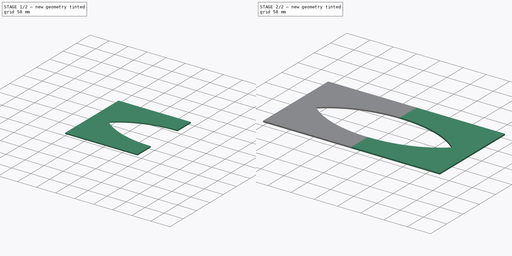
[diagram: build sequence overview — one tinted view per stage of 2, left to right]
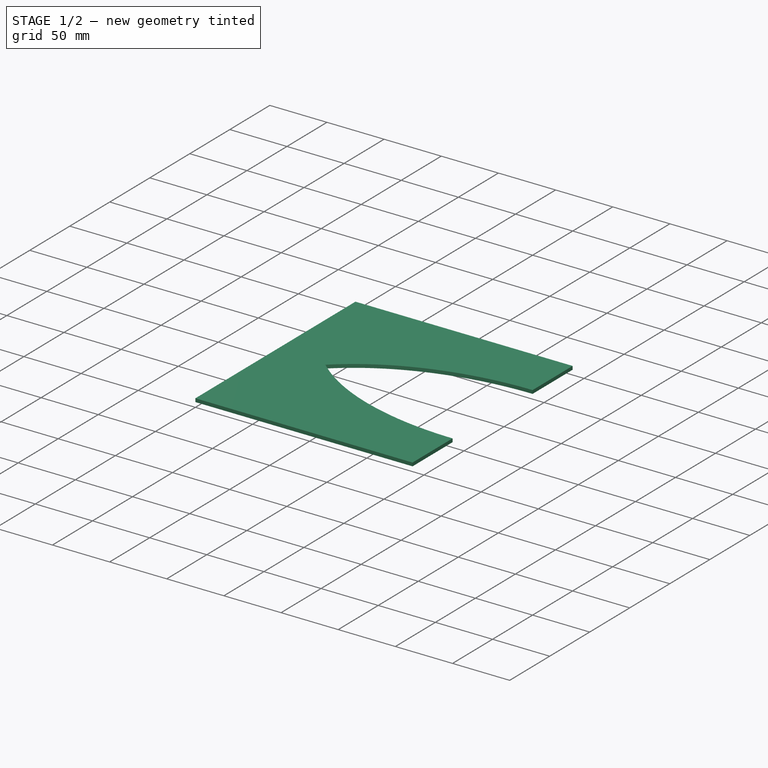
[diagram: stage 1 of 2 — iso view after this stage's code; geometry added in this stage tinted green]
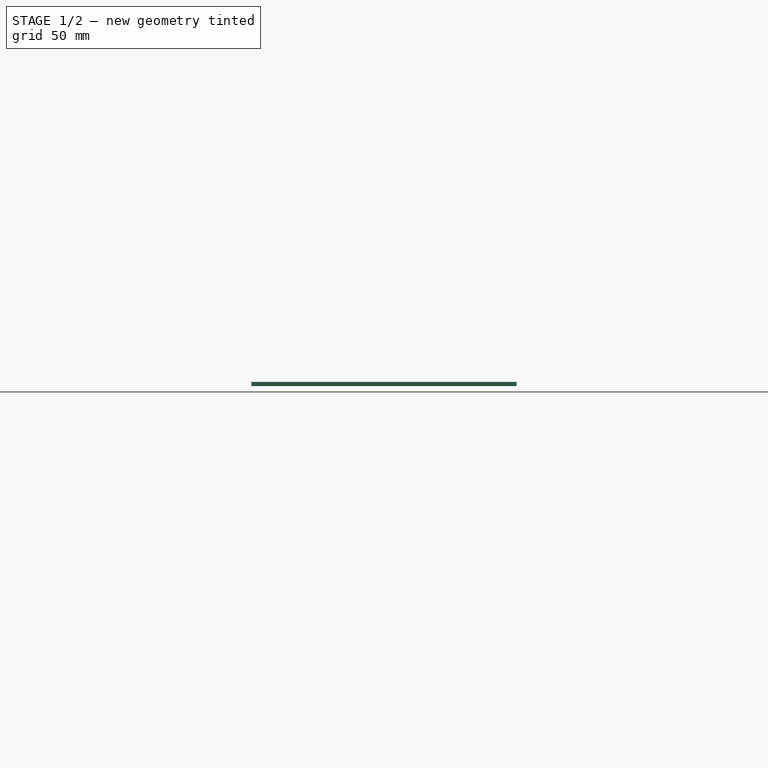
[diagram: stage 1 of 2 — front view after this stage's code; geometry added in this stage tinted green]
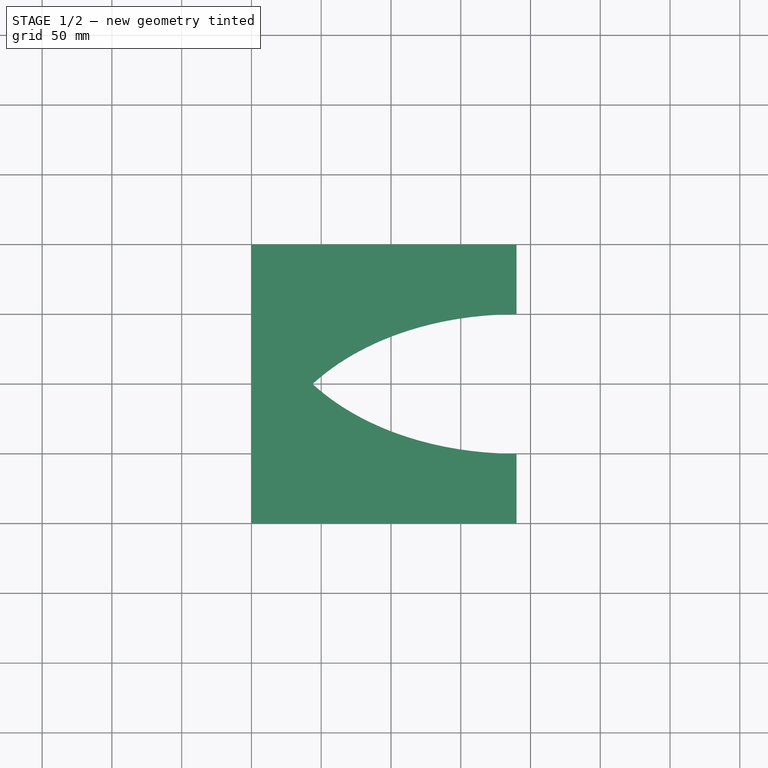
[diagram: stage 1 of 2 — top view after this stage's code; geometry added in this stage tinted green]
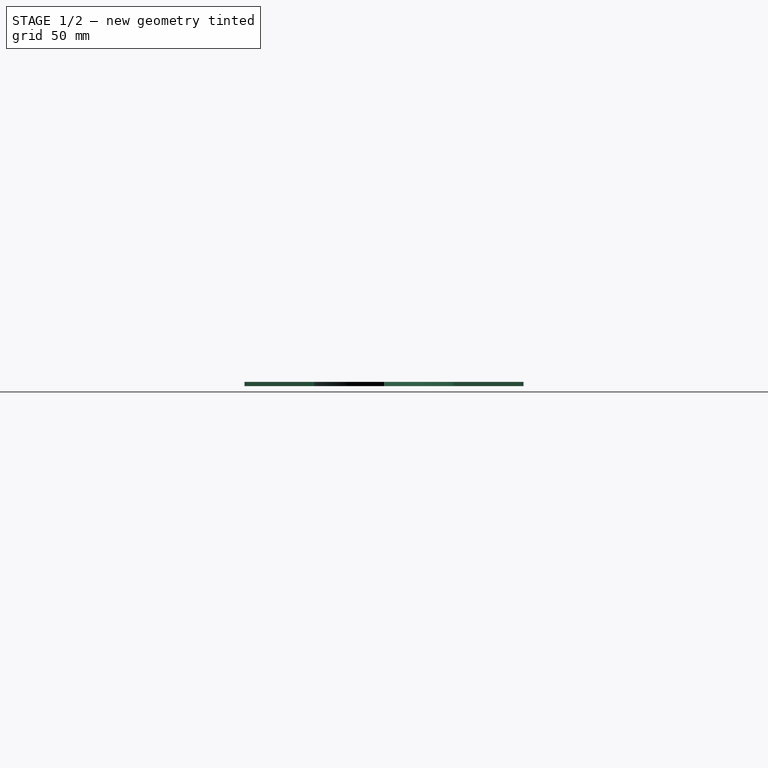
[diagram: stage 1 of 2 — right view after this stage's code; geometry added in this stage tinted green]
FCSTD DOCUMENT  (FreeCAD 0.20R0.20)
Label: 018
License: All rights reserved
LicenseURL: http://en.wikipedia.org/wiki/All_rights_reserved
objects: Sketcher::SketchObject×4, Part::Extrusion×2
note: 6 computed .brp shape members not serialized (recipe doc carries the construction recipe); baked Part::Feature solids carry a one-line shape summary decoded from their .brp

FEATURE [Part::Extrusion] Extrude  label="baseTopL001"
  Base = -> Sketch003
  Dir = (0,0,1)
  DirMode = 2
  FaceMakerClass = Part::FaceMakerBullseye
  LengthFwd = 3
  LengthRev = 0
  Solid = true
  Symmetric = false
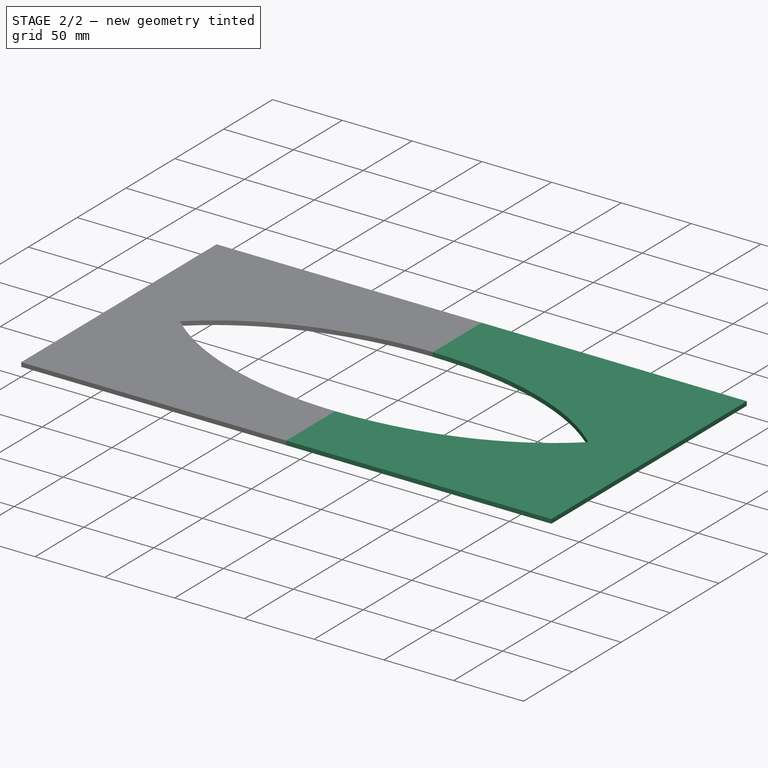
[diagram: stage 2 of 2 — iso view after this stage's code; geometry added in this stage tinted green]
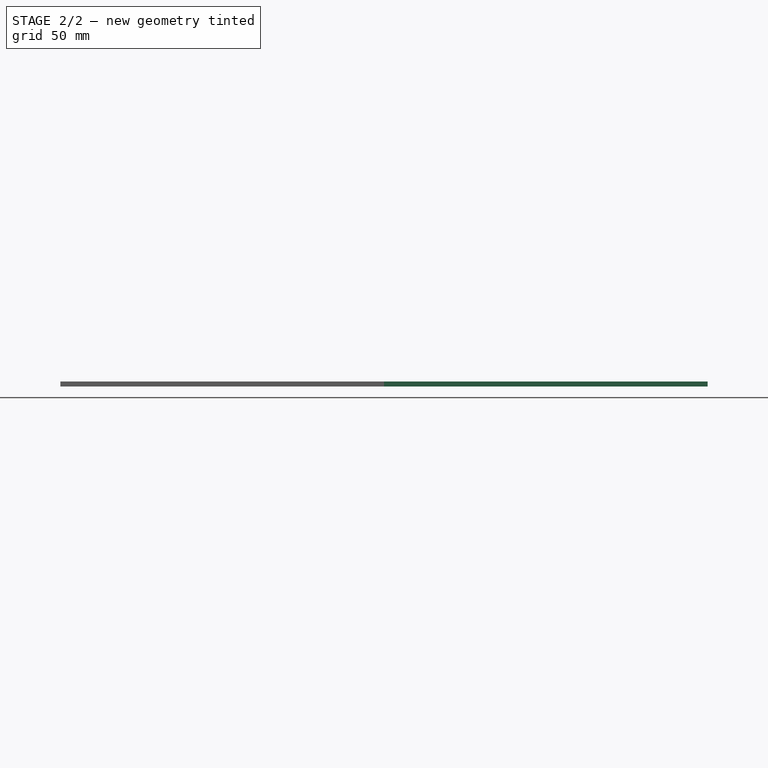
[diagram: stage 2 of 2 — front view after this stage's code; geometry added in this stage tinted green]
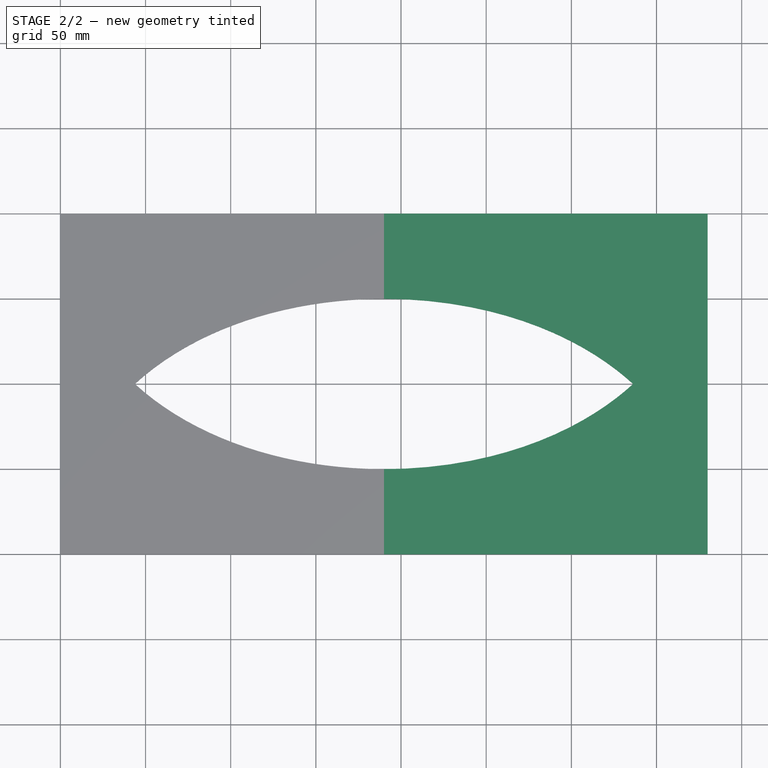
[diagram: stage 2 of 2 — top view after this stage's code; geometry added in this stage tinted green]
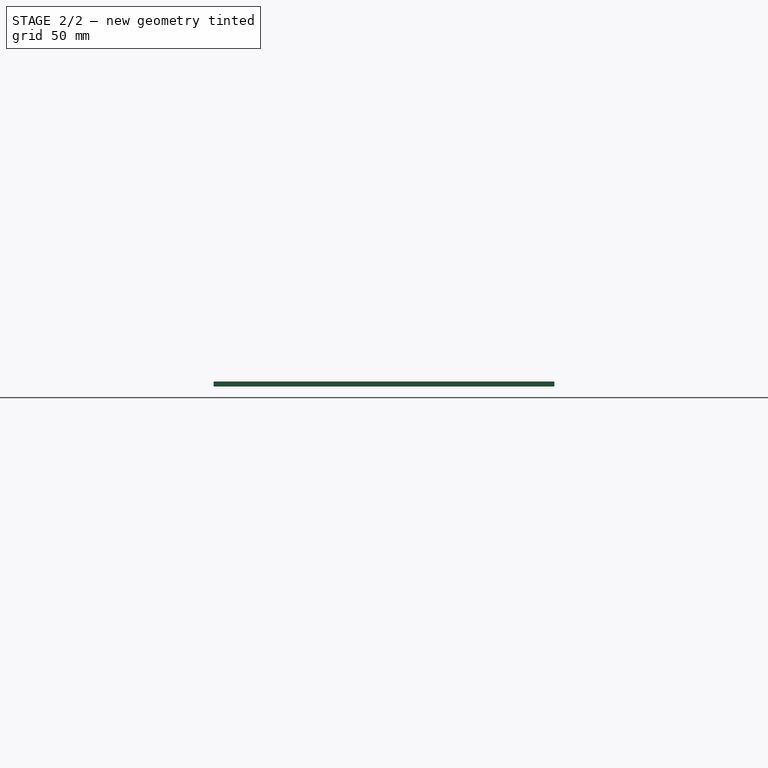
[diagram: stage 2 of 2 — right view after this stage's code; geometry added in this stage tinted green]
FEATURE [Sketcher::SketchObject] Sketch001  label="baseL"
  FullyConstrained = true
  sketch-geometry (26):
    g0: LineSegment StartX=0 StartY=0 StartZ=0 EndX=0 EndY=200 EndZ=0
    g1: LineSegment StartX=0 StartY=200 StartZ=0 EndX=190 EndY=200 EndZ=0
    g2: LineSegment StartX=0 StartY=0 StartZ=0 EndX=190 EndY=0 EndZ=0
    g3: LineSegment StartX=24 StartY=186 StartZ=0 EndX=172.826 EndY=114.213 EndZ=0
    g4: LineSegment StartX=16 StartY=178 StartZ=0 EndX=168.186 EndY=104.593 EndZ=0
    g5: LineSegment StartX=16 StartY=22 StartZ=0 EndX=168.186 EndY=95.4072 EndZ=0
    g6: LineSegment StartX=24 StartY=14 StartZ=0 EndX=172.826 EndY=85.7867 EndZ=0
    g7: LineSegment StartX=16 StartY=22 StartZ=0 EndX=16 EndY=178 EndZ=0
    g8: LineSegment StartX=200 StartY=94.0706 StartZ=0 EndX=209.626 EndY=89.4274 EndZ=0
    g9: LineSegment StartX=200 StartY=105.929 StartZ=0 EndX=209.626 EndY=110.573 EndZ=0
    g10: LineSegment StartX=24 StartY=14 StartZ=0 EndX=190 EndY=14 EndZ=0
    g11: LineSegment StartX=190 StartY=186 StartZ=0 EndX=24 EndY=186 EndZ=0
    g12: ArcOfCircle CenterX=190 CenterY=100 CenterZ=0 NormalX=0 NormalY=0 NormalZ=1 AngleXU=0 Radius=22.2927 StartAngle=0.494127 EndAngle=2.45024
    g13: ArcOfCircle CenterX=190 CenterY=100 CenterZ=0 NormalX=0 NormalY=0 NormalZ=1 AngleXU=0 Radius=11.6257 StartAngle=0.535213 EndAngle=5.74797
    g14: LineSegment StartX=190 StartY=200 StartZ=0 EndX=190 EndY=195.3 EndZ=0
    g15: LineSegment StartX=190 StartY=195.3 StartZ=0 EndX=186.638 EndY=195.3 EndZ=0
    g16: ArcOfCircle CenterX=184 CenterY=193 CenterZ=0 NormalX=0 NormalY=0 NormalZ=1 AngleXU=0 Radius=3.5 StartAngle=0.717022 EndAngle=5.56616
    g17: LineSegment StartX=190 StartY=186 StartZ=0 EndX=190 EndY=190.7 EndZ=0
    g18: LineSegment StartX=190 StartY=190.7 StartZ=0 EndX=186.638 EndY=190.7 EndZ=0
    g19: LineSegment StartX=190 StartY=14 StartZ=0 EndX=190 EndY=9 EndZ=0
    g20: LineSegment StartX=190 StartY=9 StartZ=0 EndX=193.652 EndY=9 EndZ=0
    g21: LineSegment StartX=190 StartY=0 StartZ=0 EndX=190 EndY=5 EndZ=0
    g22: ArcOfCircle CenterX=196.15 CenterY=7 CenterZ=0 NormalX=0 NormalY=0 NormalZ=1 AngleXU=0 Radius=3.2 StartAngle=3.81672 EndAngle=8.74965
    g23: LineSegment StartX=190 StartY=5 StartZ=0 EndX=193.652 EndY=5 EndZ=0
    g24: ArcOfCircle CenterX=190 CenterY=100 CenterZ=0 NormalX=0 NormalY=0 NormalZ=1 AngleXU=0 Radius=22.2927 StartAngle=3.83294 EndAngle=5.78906
    g25: ArcOfCircle CenterX=190 CenterY=100 CenterZ=0 NormalX=0 NormalY=0 NormalZ=1 AngleXU=0 Radius=22.2927 StartAngle=2.93408 EndAngle=3.3491
  constraints (67):
    c: Coincident(g0,g-1)
    c: Vertical(g0)
    c: Distance(g0) = 200
    c: Coincident(g1,g0)
    c: Horizontal(g1)
    c: Distance(g1) = 190
    c: Coincident(g2,g0)
    c: Horizontal(g2)
    c: Distance(g2) = 190
    c: Block(g3)
    c: Block(g4)
    c: Block(g6)
    c: Block(g5)
    c: Vertical(g7)
    c: Block(g7)
    c: Block(g9)
    c: Block(g8)
    c: Coincident(g10,g6)
    c: Horizontal(g10)
    c: Coincident(g11,g3)
    c: Horizontal(g11)
    c: Block(g11)
    c: Coincident(g14,g1)
    c: Vertical(g14)
    c: Distance(g14) = 4.7
    c: Coincident(g15,g14)
    c: Horizontal(g15)
    c: Coincident(g17,g11)
    c: Vertical(g17)
    c: Distance(g17) = 4.7
    c: Coincident(g18,g17)
    c: Block(g18)
    c: Block(g10)
    c: Coincident(g19,g10)
    c: Vertical(g19)
    c: Distance(g19) = 5
    c: Coincident(g20,g19)
    c: Horizontal(g20)
    c: Coincident(g21,g2)
    c: Vertical(g21)
    c: Distance(g21) = 5
    c: Coincident(g23,g21)
    c: Horizontal(g23)
    c: Block(g23)
    c: Block(g22)
    c: Coincident(g22,g20)
    c: Coincident(g22,g23)
    c: Block(g20)
    c: Block(g19)
    c: Block(g16)
    c: Coincident(g16,g18)
    c: Coincident(g16,g15)
    c: Block(g15)
    c: Coincident(g13,g8)
    c: Coincident(g13,g9)
    c: Block(g13)
    c: Block(g12)
    c: Coincident(g9,g12)
    c: Coincident(g8,g24)
    c: Equal(g12,g24)
    c: Coincident(g25,g5)
    c: Coincident(g24,g6)
    c: Coincident(g12,g24)
    c: Equal(g12,g25)
    c: Coincident(g12,g3)
    c: Coincident(g25,g4)
    c: Coincident(g12,g25)
FEATURE [Sketcher::SketchObject] Sketch002  label="baseR"
  FullyConstrained = true
  sketch-geometry (25):
    g0: LineSegment StartX=390 StartY=200 StartZ=0 EndX=390 EndY=0 EndZ=0
    g1: LineSegment StartX=390 StartY=200 StartZ=0 EndX=200 EndY=200 EndZ=0
    g2: LineSegment StartX=390 StartY=0 StartZ=0 EndX=200 EndY=0 EndZ=0
    g3: LineSegment StartX=212.293 StartY=100 StartZ=0 EndX=374 EndY=22 EndZ=0
    g4: LineSegment StartX=217.615 StartY=85.5738 StartZ=0 EndX=366 EndY=14 EndZ=0
    g5: LineSegment StartX=374 StartY=178 StartZ=0 EndX=212.293 EndY=100 EndZ=0
    g6: LineSegment StartX=217.615 StartY=114.426 StartZ=0 EndX=366 EndY=186 EndZ=0
    g7: LineSegment StartX=374 StartY=178 StartZ=0 EndX=374 EndY=22 EndZ=0
    g8: LineSegment StartX=366 StartY=14 StartZ=0 EndX=200 EndY=14 EndZ=0
    g9: LineSegment StartX=200 StartY=186 StartZ=0 EndX=366 EndY=186 EndZ=0
    g10: ArcOfCircle CenterX=200 CenterY=100 CenterZ=0 NormalX=0 NormalY=0 NormalZ=1 AngleXU=0 Radius=11.2273 StartAngle=0.945168 EndAngle=5.33802
    g11: LineSegment StartX=200 StartY=200 StartZ=0 EndX=200 EndY=195 EndZ=0
    g12: LineSegment StartX=200 StartY=186 StartZ=0 EndX=200 EndY=191 EndZ=0
    g13: LineSegment StartX=200 StartY=191 StartZ=0 EndX=196.348 EndY=191 EndZ=0
    g14: ArcOfCircle CenterX=193.85 CenterY=193 CenterZ=0 NormalX=0 NormalY=0 NormalZ=1 AngleXU=0 Radius=3.2 StartAngle=0.675132 EndAngle=5.60805
    g15: LineSegment StartX=200 StartY=195 StartZ=0 EndX=196.348 EndY=195 EndZ=0
    g16: LineSegment StartX=200 StartY=14 StartZ=0 EndX=200 EndY=9.3 EndZ=0
    g17: LineSegment StartX=200 StartY=9.3 StartZ=0 EndX=203.362 EndY=9.3 EndZ=0
    g18: ArcOfCircle CenterX=206 CenterY=7 CenterZ=0 NormalX=0 NormalY=0 NormalZ=1 AngleXU=0 Radius=3.5 StartAngle=3.85861 EndAngle=8.70776
    g19: LineSegment StartX=200 StartY=0 StartZ=0 EndX=200 EndY=4.7 EndZ=0
    g20: LineSegment StartX=200 StartY=4.7 StartZ=0 EndX=203.362 EndY=4.7 EndZ=0
    g21: LineSegment StartX=206.575 StartY=109.101 StartZ=0 EndX=206.575 EndY=108.801 EndZ=0
    g22: LineSegment StartX=206.575 StartY=90.8992 StartZ=0 EndX=206.575 EndY=91.1992 EndZ=0
    g23: LineSegment StartX=206.575 StartY=108.801 StartZ=0 EndX=217.615 EndY=114.426 EndZ=0
    g24: LineSegment StartX=206.575 StartY=91.1992 StartZ=0 EndX=217.615 EndY=85.5738 EndZ=0
  constraints (59):
    c: Vertical(g0)
    c: Block(g0)
    c: Coincident(g1,g0)
    c: Horizontal(g1)
    c: Coincident(g2,g0)
    c: Horizontal(g2)
    c: Distance(g2) = 190
    c: Distance(g1) = 190
    c: Block(g6)
    c: Block(g5)
    c: Block(g3)
    c: Block(g4)
    c: Coincident(g3,g5)
    c: Coincident(g7,g5)
    c: Coincident(g7,g3)
    c: Vertical(g7)
    c: Coincident(g8,g4)
    c: Coincident(g9,g6)
    c: Coincident(g11,g1)
    c: Vertical(g11)
    c: Block(g9)
    c: Coincident(g12,g9)
    c: Vertical(g12)
    c: Distance(g12) = 5
    c: Coincident(g13,g12)
    c: Horizontal(g13)
    c: Coincident(g15,g11)
    c: Block(g15)
    c: Block(g8)
    c: Coincident(g16,g8)
    c: Vertical(g16)
    c: Distance(g16) = 4.7
    c: Coincident(g17,g16)
    c: Horizontal(g17)
    c: Coincident(g19,g2)
    c: Vertical(g19)
    c: Coincident(g20,g19)
    c: Block(g20)
    c: Block(g18)
    c: Coincident(g18,g17)
    c: Coincident(g18,g20)
    c: Block(g14)
    c: Coincident(g14,g13)
    c: Coincident(g14,g15)
    c: Block(g10)
    c: Coincident(g21,g10)
    c: Vertical(g21)
    c: Coincident(g22,g10)
    c: Vertical(g22)
    c: Distance(g21) = 0.3
    c: Distance(g22) = 0.3
    c: Coincident(g23,g21)
    c: Angle(g23,g21) = 1.09956
    c: Coincident(g24,g22)
    c: Angle(g22,g24) = 1.09956
    c: Block(g24)
    c: Block(g23)
    c: Coincident(g4,g24)
    c: Coincident(g6,g23)
FEATURE [Sketcher::SketchObject] Sketch003  label="baseTopL"
  FullyConstrained = true
  sketch-geometry (19):
    g0: LineSegment StartX=0 StartY=0 StartZ=0 EndX=0 EndY=200 EndZ=0
    g1: LineSegment StartX=0 StartY=0 StartZ=0 EndX=190 EndY=0 EndZ=0
    g2: BSplineCurve PolesCount=4 KnotsCount=2 Degree=3 IsPeriodic=0
    g3: BSplineCurve PolesCount=4 KnotsCount=2 Degree=3 IsPeriodic=0
    g4: LineSegment StartX=0 StartY=200 StartZ=0 EndX=190 EndY=200 EndZ=0
    g5: LineSegment StartX=190 StartY=200 StartZ=0 EndX=190 EndY=150 EndZ=0
    g6-g9: Circle x4 (B-spline internal-alignment scaffolding for g2; pole/knot coordinates omitted)
    g10: GeomPoint X=43.7379 Y=100 Z=0
    g11: GeomPoint X=190 Y=50 Z=0
    g12-g15: Circle x4 (B-spline internal-alignment scaffolding for g3; pole/knot coordinates omitted)
    g16: GeomPoint X=43.7379 Y=100 Z=0
    g17: GeomPoint X=190 Y=150 Z=0
    g18: LineSegment StartX=190 StartY=50 StartZ=0 EndX=190 EndY=0 EndZ=0
  constraints (20):
    c: Coincident(g0,g-1)
    c: Vertical(g0)
    c: Coincident(g1,g0)
    c: Horizontal(g1)
    c: Distance(g0) = 200
    c: Block(g2)
    c: Block(g3)
    c: Coincident(g4,g0)
    c: Horizontal(g4)
    c: Distance(g4) = 190
    c: Coincident(g5,g4)
    c: Vertical(g5)
    c: Block(g5)
    c: PointOnObject(g2,g5)
    c: PointOnObject(g1,g5)
    c: InternalAlignment(g6-g11 -> g2) x6
    c: InternalAlignment(g12-g17 -> g3) x6
    c: Coincident(g5,g3)
    c: PointOnObject(g18,g1)
    c: Block(g18)
FEATURE [Sketcher::SketchObject] Sketch004  label="baseTopR"
  FullyConstrained = true
  sketch-geometry (19):
    g0: LineSegment StartX=190 StartY=200 StartZ=0 EndX=380 EndY=200 EndZ=0
    g1: LineSegment StartX=190 StartY=150 StartZ=0 EndX=190 EndY=200 EndZ=0
    g2: LineSegment StartX=380 StartY=200 StartZ=0 EndX=380 EndY=0 EndZ=0
    g3-g6: Circle x4 (B-spline internal-alignment scaffolding for g7; pole/knot coordinates omitted)
    g7: BSplineCurve PolesCount=4 KnotsCount=2 Degree=3 IsPeriodic=0
    g8: GeomPoint X=190 Y=50 Z=0
    g9: GeomPoint X=336.262 Y=100 Z=0
    g10: LineSegment StartX=190 StartY=50 StartZ=0 EndX=190 EndY=0 EndZ=0
    g11-g14: Circle x4 (B-spline internal-alignment scaffolding for g15; pole/knot coordinates omitted)
    g15: BSplineCurve PolesCount=4 KnotsCount=2 Degree=3 IsPeriodic=0
    g16: GeomPoint X=190 Y=150 Z=0
    g17: GeomPoint X=336.262 Y=100 Z=0
    g18: LineSegment StartX=190 StartY=0 StartZ=0 EndX=380 EndY=0 EndZ=0
  constraints (31):
    c: Horizontal(g0)
    c: Coincident(g1,g0)
    c: Vertical(g1)
    c: Coincident(g2,g0)
    c: Vertical(g2)
    c: Block(g0)
    c: Weight(g3) = 1
    c: Equal(g3,g4)
    c: Equal(g3,g5)
    c: Equal(g3,g6)
    c: InternalAlignment(g3-g6 -> g7) x4
    c: InternalAlignment(g8,g7)
    c: InternalAlignment(g9,g7)
    c: Block(g7)
    c: Block(g1)
    c: Coincident(g10,g7)
    c: Vertical(g10)
    c: Weight(g11) = 1
    c: Coincident(g15,g1)
    c: Equal(g11,g12)
    c: Equal(g11,g13)
    c: Equal(g11,g14)
    c: Coincident(g15,g7)
    c: InternalAlignment(g11-g14 -> g15) x4
    c: InternalAlignment(g16,g15)
    c: InternalAlignment(g17,g15)
    c: Block(g15)
    c: Coincident(g18,g10)
    c: Coincident(g18,g2)
    c: Horizontal(g18)
    c: Block(g18)
FEATURE [Part::Extrusion] Extrude001  label="baseTopR001"
  Base = -> Sketch004
  Dir = (0,0,1)
  DirMode = 2
  FaceMakerClass = Part::FaceMakerBullseye
  LengthFwd = 3
  LengthRev = 0
  Solid = true
  Symmetric = false
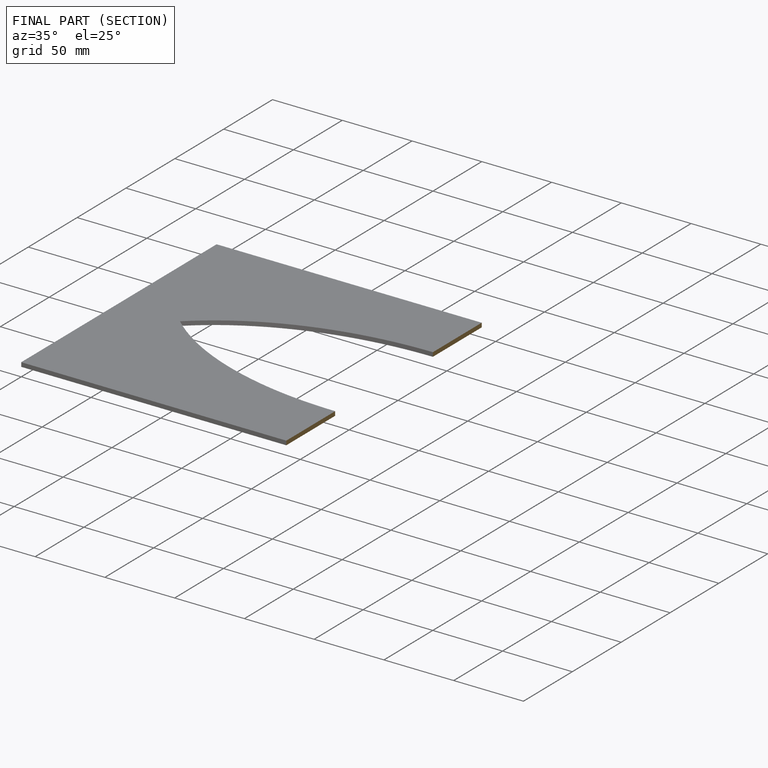
[diagram: finished part — half-section view (interior)]
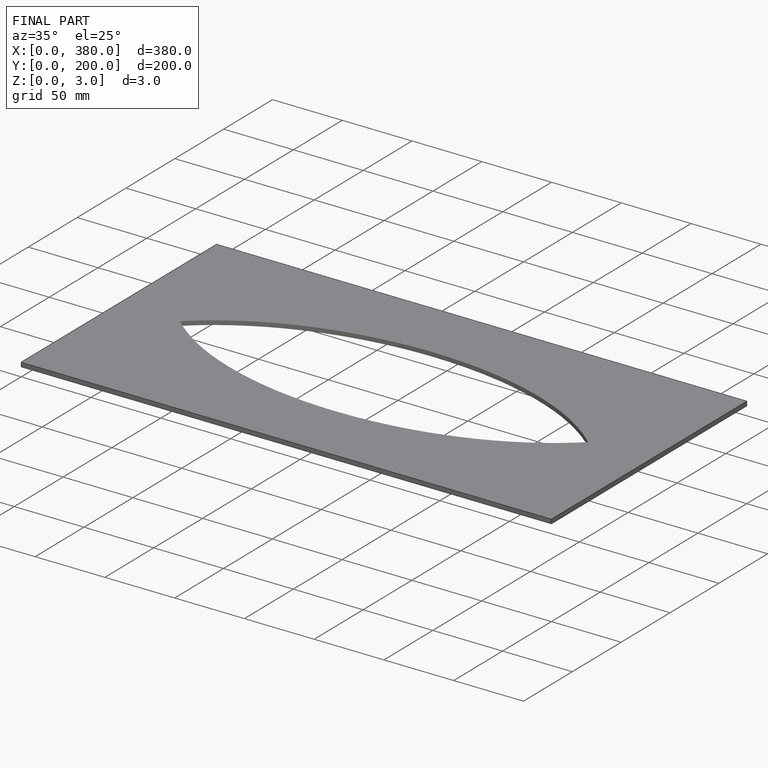
[diagram: finished part — iso view with bounding-box wireframe]
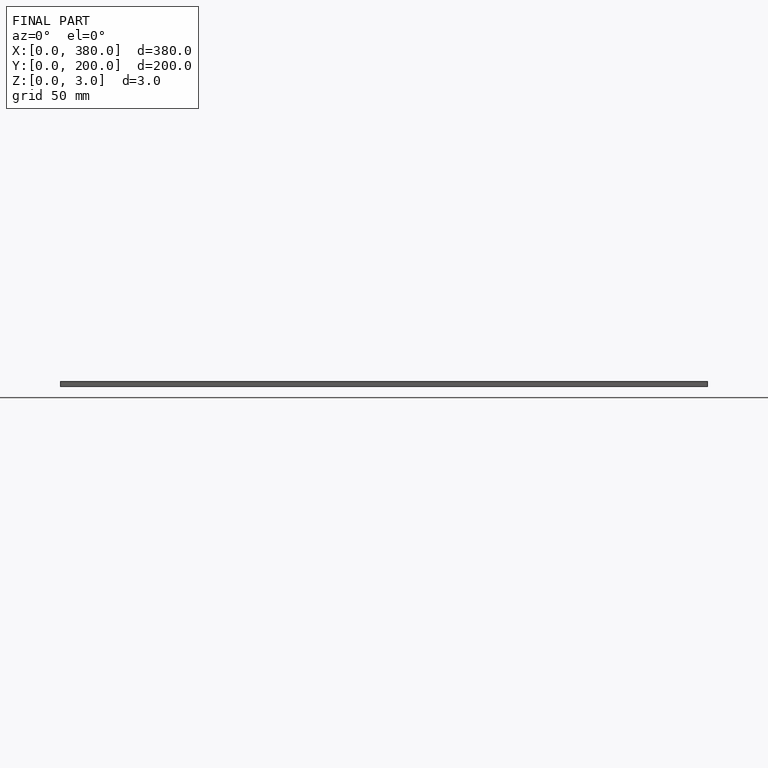
[diagram: finished part — front view with bounding-box wireframe]
